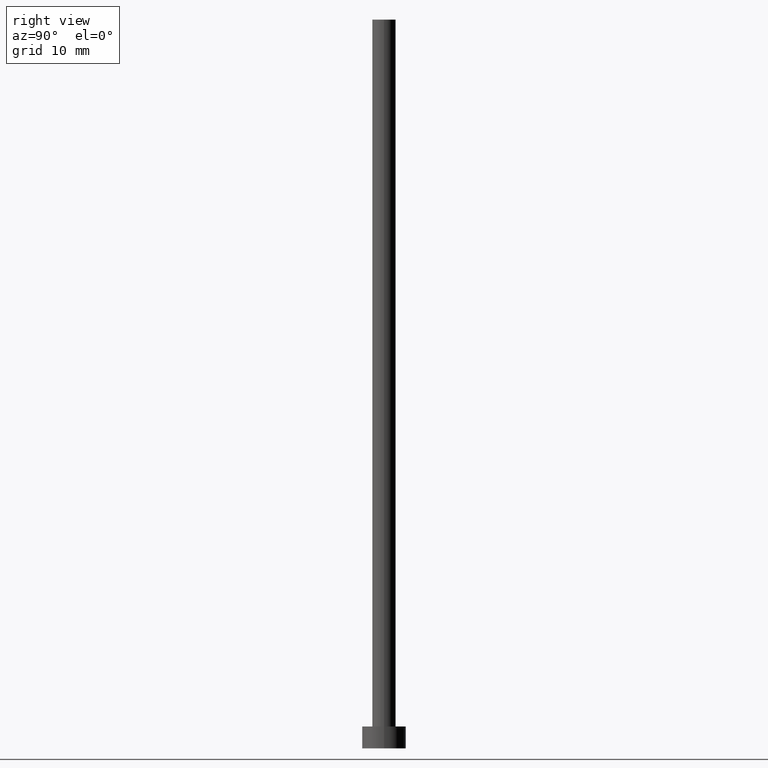
[diagram: clean part render]
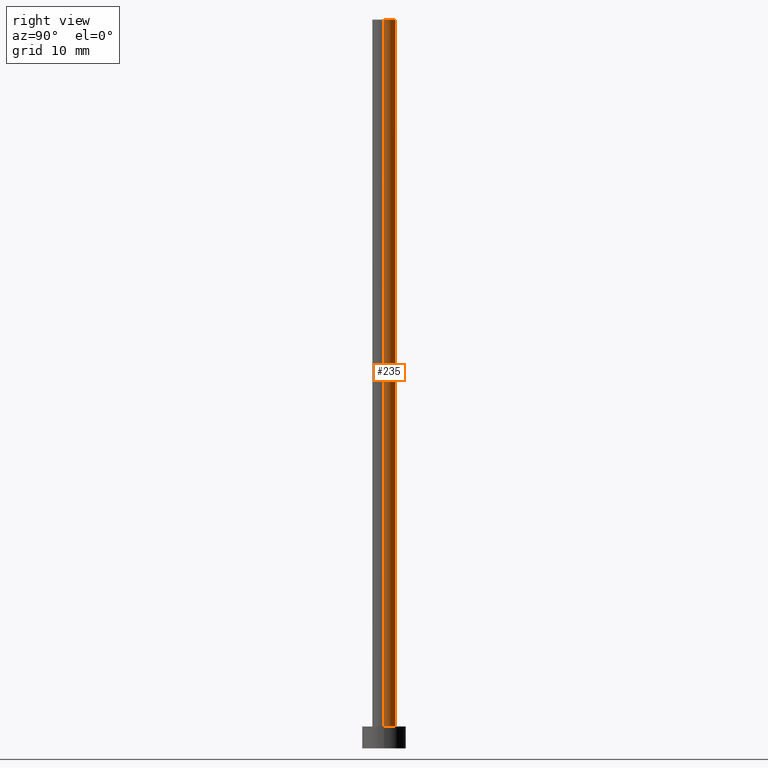
[diagram: same view with one face highlighted and labeled with its STEP entity id]
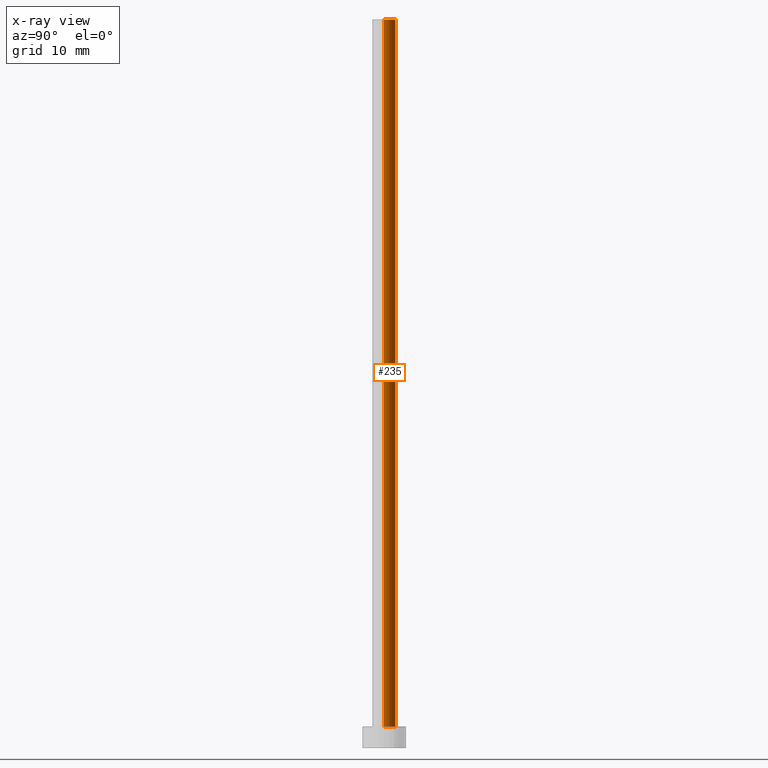
[diagram: x-ray of the same camera — body ghosted, the highlighted face saturated]
A machine part, right view. The second image highlights one B-rep face of the part: STEP entity #235.
The next image is the same camera in x-ray: the body ghosted, the highlighted face saturated — about 0% of this face is hidden behind the body in this view.
In plain terms, the highlighted cylindrical surface (edge-blend (fillet) strip) has radius 1.6 mm, axis along (-0, -0, -1).
Its self-contained STEP definition (entity closure, byte-faithful):
#5 = LINE ( 'NONE', #207, #225 ) ;
#10 = DIRECTION ( 'NONE',  ( 1.000000000000000000, 0.000000000000000000, 0.000000000000000000 ) ) ;
#24 = VERTEX_POINT ( 'NONE', #160 ) ;
#27 = ORIENTED_EDGE ( 'NONE', *, *, #252, .F. ) ;
#29 = VERTEX_POINT ( 'NONE', #62 ) ;
#34 = CIRCLE ( 'NONE', #173, 1.600000000000000089 ) ;
#46 = CYLINDRICAL_SURFACE ( 'NONE', #138, 1.600000000000000089 ) ;
#52 = EDGE_CURVE ( 'NONE', #24, #161, #5, .T. ) ;
#62 = CARTESIAN_POINT ( 'NONE',  ( -1.600000000000000089, 0.000000000000000000, 3.000000000000000000 ) ) ;
#69 = DIRECTION ( 'NONE',  ( 1.000000000000000000, 0.000000000000000000, 0.000000000000000000 ) ) ;
#71 = ORIENTED_EDGE ( 'NONE', *, *, #222, .F. ) ;
#72 = DIRECTION ( 'NONE',  ( -0.000000000000000000, -0.000000000000000000, -1.000000000000000000 ) ) ;
#81 = VECTOR ( 'NONE', #128, 1000.000000000000000 ) ;
#88 = CARTESIAN_POINT ( 'NONE',  ( -1.600000000000000089, 0.000000000000000000, 100.0000000000000000 ) ) ;
#107 = CARTESIAN_POINT ( 'NONE',  ( 0.000000000000000000, 0.000000000000000000, 3.000000000000000000 ) ) ;
#109 = EDGE_CURVE ( 'NONE', #161, #29, #158, .T. ) ;
#110 = VERTEX_POINT ( 'NONE', #88 ) ;
#123 = DIRECTION ( 'NONE',  ( -0.000000000000000000, -0.000000000000000000, -1.000000000000000000 ) ) ;
#128 = DIRECTION ( 'NONE',  ( -0.000000000000000000, -0.000000000000000000, -1.000000000000000000 ) ) ;
#129 = LINE ( 'NONE', #233, #81 ) ;
#138 = AXIS2_PLACEMENT_3D ( 'NONE', #215, #72, #251 ) ;
#143 = ORIENTED_EDGE ( 'NONE', *, *, #52, .T. ) ;
#151 = CARTESIAN_POINT ( 'NONE',  ( 1.600000000000000089, 1.959434878635764737E-16, 3.000000000000000000 ) ) ;
#158 = CIRCLE ( 'NONE', #192, 1.600000000000000089 ) ;
#160 = CARTESIAN_POINT ( 'NONE',  ( 1.600000000000000089, 1.959434878635764737E-16, 100.0000000000000000 ) ) ;
#161 = VERTEX_POINT ( 'NONE', #151 ) ;
#169 = CARTESIAN_POINT ( 'NONE',  ( 0.000000000000000000, 0.000000000000000000, 100.0000000000000000 ) ) ;
#170 = DIRECTION ( 'NONE',  ( 0.000000000000000000, 0.000000000000000000, 1.000000000000000000 ) ) ;
#173 = AXIS2_PLACEMENT_3D ( 'NONE', #169, #170, #69 ) ;
#185 = DIRECTION ( 'NONE',  ( 0.000000000000000000, 0.000000000000000000, 1.000000000000000000 ) ) ;
#192 = AXIS2_PLACEMENT_3D ( 'NONE', #107, #185, #10 ) ;
#207 = CARTESIAN_POINT ( 'NONE',  ( 1.600000000000000089, 1.959434878635764737E-16, 100.0000000000000000 ) ) ;
#209 = FACE_OUTER_BOUND ( 'NONE', #245, .T. ) ;
#215 = CARTESIAN_POINT ( 'NONE',  ( 0.000000000000000000, 0.000000000000000000, 100.0000000000000000 ) ) ;
#222 = EDGE_CURVE ( 'NONE', #110, #29, #129, .T. ) ;
#225 = VECTOR ( 'NONE', #123, 1000.000000000000000 ) ;
#233 = CARTESIAN_POINT ( 'NONE',  ( -1.600000000000000089, 0.000000000000000000, 100.0000000000000000 ) ) ;
#235 = ADVANCED_FACE ( 'NONE', ( #209 ), #46, .T. ) ;
#245 = EDGE_LOOP ( 'NONE', ( #27, #143, #250, #71 ) ) ;
#250 = ORIENTED_EDGE ( 'NONE', *, *, #109, .T. ) ;
#251 = DIRECTION ( 'NONE',  ( -1.000000000000000000, 0.000000000000000000, 0.000000000000000000 ) ) ;
#252 = EDGE_CURVE ( 'NONE', #24, #110, #34, .T. ) ;